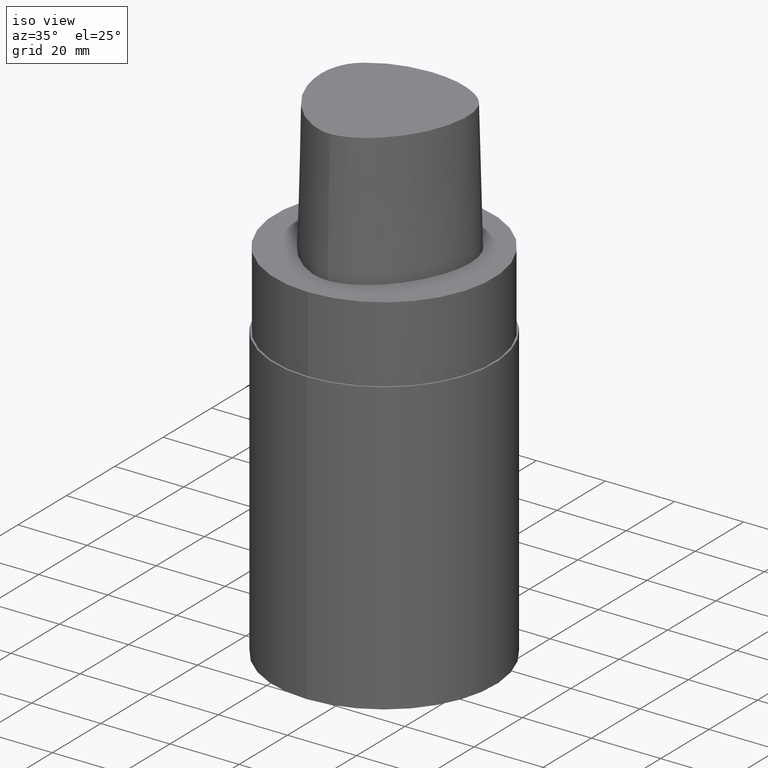
[diagram: clean part render]
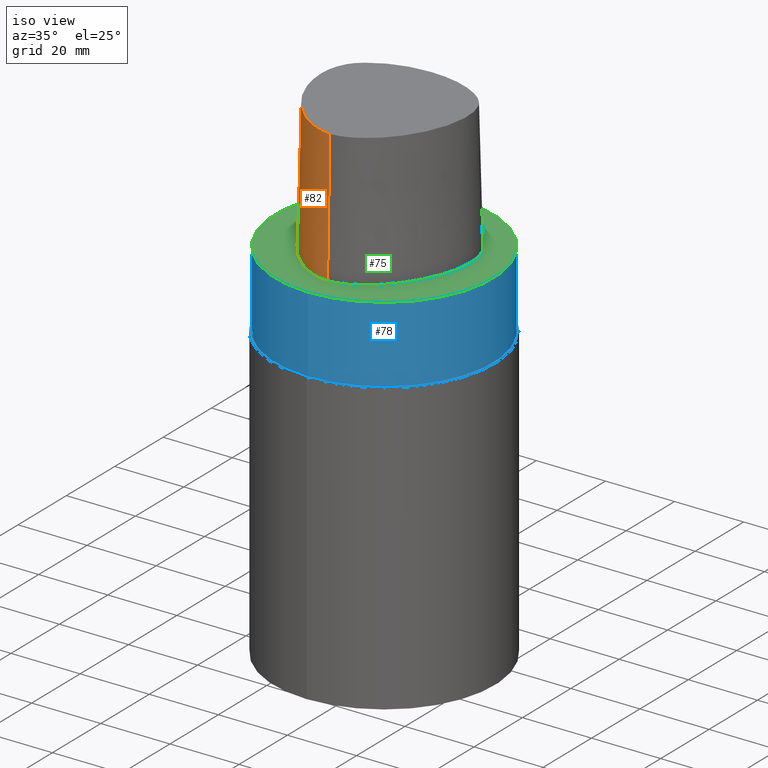
[diagram: same view with three faces highlighted in distinct colors, each labeled with its STEP entity id]
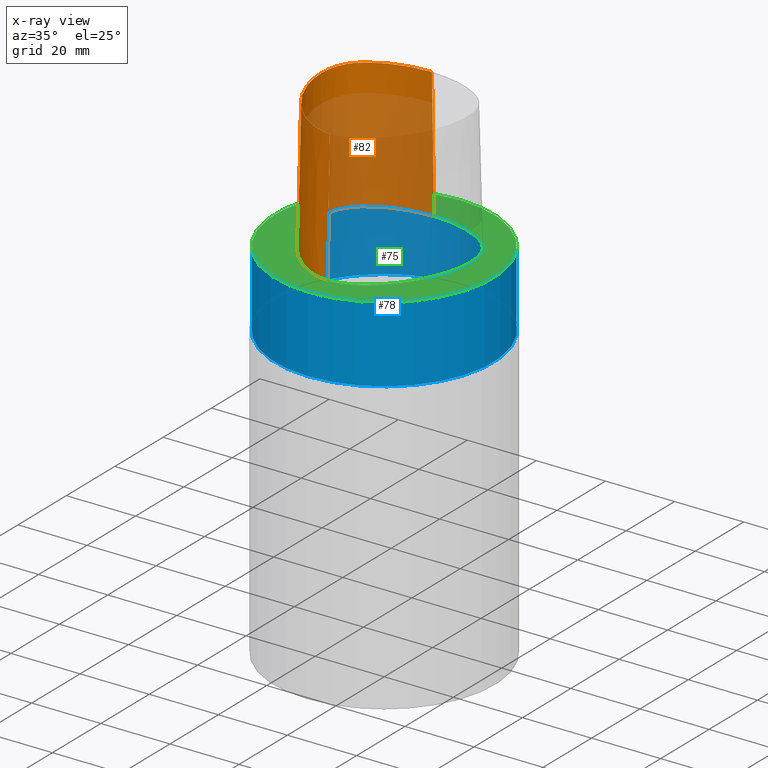
[diagram: x-ray of the same camera — body ghosted, the three highlighted faces saturated]
A machine part, iso view with three faces highlighted in distinct colors.
The next image is the same camera in x-ray (body ghosted, the three faces saturated) — at least one of them is partly hidden behind the body in this view.
Their STEP definitions:

[orange] entity #82 — the highlighted face is a freeform B-spline surface patch.
#82=ADVANCED_FACE('',(#105),#106,.T.);
#105=FACE_OUTER_BOUND('',#197,.T.);
#106=B_SPLINE_SURFACE_WITH_KNOTS('',3,3,((#198,#199,#200,#201),(#202,#203,#204,#205),(#206,#207,#208,#209),(#210,#211,#212,#213),(#214,#215,#216,#217),(#218,#219,#220,#221),(#222,#223,#224,#225),(#226,#227,#228,#229),(#230,#231,#232,#233),(#234,#235,#236,#237),(#238,#239,#240,#241),(#242,#243,#244,#245),(#246,#247,#248,#249),(#250,#251,#252,#253),(#254,#255,#256,#257),(#258,#259,#260,#261),(#262,#263,#264,#265),(#266,#267,#268,#269)),.UNSPECIFIED.,.F.,.F.,.F.,(4,1,1,1,1,1,1,1,1,2,1,1,1,1,4),(4,4),(-6.6151339308743,-6.20168806019465,-5.78824218951501,-5.37479631883537,-4.96135044815572,-4.13445870679644,-3.30756696543715,-2.89412109475751,-2.48067522407786,-2.06722935339822,-1.65378348271857,-1.24033761203893,-0.826891741359287,-0.413445870679644,0.0),(-3.8,0.0),.UNSPECIFIED.);
#197=EDGE_LOOP('',(#309,#310,#311,#312));
#198=CARTESIAN_POINT('',(0.038736923393866,-22.5191997536361,38.0));
#199=CARTESIAN_POINT('',(0.04035580478973,-22.8358410047159,25.3333333333066));
#200=CARTESIAN_POINT('',(0.041974686185626,-23.1524822558133,12.6666666666934));
#201=CARTESIAN_POINT('',(0.04359356758149,-23.4691235068931,0.0));
#202=CARTESIAN_POINT('',(-1.33786123484754,-22.5261650259856,38.0));
#203=CARTESIAN_POINT('',(-1.38240731367927,-22.8430399310626,25.3333333333066));
#204=CARTESIAN_POINT('',(-1.42695339249092,-23.1599147815484,12.6666666666934));
#205=CARTESIAN_POINT('',(-1.4714994713963,-23.4767895315797,0.0));
#206=CARTESIAN_POINT('',(-4.08909358431842,-21.9268839879558,38.0));
#207=CARTESIAN_POINT('',(-4.20580731135515,-22.2249725500078,25.3333333333066));
#208=CARTESIAN_POINT('',(-4.32252104640446,-22.5230611651922,12.6666666666934));
#209=CARTESIAN_POINT('',(-4.43923476371401,-22.821149804767,0.0));
#210=CARTESIAN_POINT('',(-7.8333083619947,-19.9973514861616,38.0));
#211=CARTESIAN_POINT('',(-8.00568301809614,-20.2649260859405,25.3333333333066));
#212=CARTESIAN_POINT('',(-8.1780576640789,-20.532500564315,12.6666666666934));
#213=CARTESIAN_POINT('',(-8.35043230079961,-20.8000751253325,0.0));
#214=CARTESIAN_POINT('',(-11.1035071147626,-17.450554957873,38.0));
#215=CARTESIAN_POINT('',(-11.3173048160562,-17.6855739222454,25.3333333333066));
#216=CARTESIAN_POINT('',(-11.5311025116181,-17.9205928617968,12.6666666666934));
#217=CARTESIAN_POINT('',(-11.744900222602,-18.1556117874078,0.0));
#218=CARTESIAN_POINT('',(-14.9379535189057,-13.461132049697,38.0));
#219=CARTESIAN_POINT('',(-15.191622410671,-13.6542981711372,25.3333333333066));
#220=CARTESIAN_POINT('',(-15.4452913389853,-13.8474645327131,12.6666666666934));
#221=CARTESIAN_POINT('',(-15.6989602501314,-14.0406306929147,0.0));
#222=CARTESIAN_POINT('',(-18.6681263017223,-7.59391757463204,38.0));
#223=CARTESIAN_POINT('',(-18.9571800800711,-7.73136168081928,25.3333333333066));
#224=CARTESIAN_POINT('',(-19.2462337287194,-7.86880572399774,12.6666666666934));
#225=CARTESIAN_POINT('',(-19.5352875070682,-8.00624990770787,0.0));
#226=CARTESIAN_POINT('',(-20.7857899858339,-0.952862819790525,38.0));
#227=CARTESIAN_POINT('',(-21.0973808305434,-1.02218087467418,25.3333333333066));
#228=CARTESIAN_POINT('',(-21.408971677436,-1.09149899580772,12.6666666666934));
#229=CARTESIAN_POINT('',(-21.7205626190491,-1.16081708945282,0.0));
#230=CARTESIAN_POINT('',(-21.2911760556836,4.5469215763113,38.0));
#231=CARTESIAN_POINT('',(-21.610337904926,4.54783292082248,25.3333333333066));
#232=CARTESIAN_POINT('',(-21.9294998290918,4.54874426225691,12.6666666666934));
#233=CARTESIAN_POINT('',(-22.2486616783342,4.54965558738736,0.0));
#234=CARTESIAN_POINT('',(-20.7345309521958,8.74909381391006,38.0));
#235=CARTESIAN_POINT('',(-21.0445680426217,8.83349432450556,25.3333333333066));
#236=CARTESIAN_POINT('',(-21.3546050933631,8.91789488065068,12.6666666666934));
#237=CARTESIAN_POINT('',(-21.6646421256468,9.00229539124618,0.0));
#238=CARTESIAN_POINT('',(-19.5531512296439,11.3174844040833,38.0));
#239=CARTESIAN_POINT('',(-19.8336219699984,11.4710077674213,25.3333333333066));
#240=CARTESIAN_POINT('',(-20.1140927680763,11.6245311337623,12.6666666666934));
#241=CARTESIAN_POINT('',(-20.3945635471922,11.7780544971003,0.0));
#242=CARTESIAN_POINT('',(-17.9100913688793,13.524027510437,38.0));
#243=CARTESIAN_POINT('',(-18.1375785458768,13.7487051053655,25.3333333333066));
#244=CARTESIAN_POINT('',(-18.365065665211,13.9733826973296,12.6666666666934));
#245=CARTESIAN_POINT('',(-18.5925528034471,14.1980602922581,0.0));
#246=CARTESIAN_POINT('',(-15.7996349656398,15.3762170634413,38.0));
#247=CARTESIAN_POINT('',(-15.9739761051783,15.6434029846179,25.3333333333066));
#248=CARTESIAN_POINT('',(-16.1483172726872,15.9105889315134,12.6666666666934));
#249=CARTESIAN_POINT('',(-16.3226584122258,16.1777748720707,0.0));
#250=CARTESIAN_POINT('',(-12.1175640002064,17.3825162484012,38.0));
#251=CARTESIAN_POINT('',(-12.2475895903055,17.6724842099619,25.3333333333066));
#252=CARTESIAN_POINT('',(-12.3776152070492,17.9624521925696,12.6666666666934));
#253=CARTESIAN_POINT('',(-12.5076407874579,18.2524201541303,0.0));
#254=CARTESIAN_POINT('',(-8.21761151654222,18.7588585989994,38.0));
#255=CARTESIAN_POINT('',(-8.30099497910627,19.0656105427881,25.3333333333066));
#256=CARTESIAN_POINT('',(-8.38437843913309,19.3723624535439,12.6666666666934));
#257=CARTESIAN_POINT('',(-8.46776192107786,19.679114377952,0.0));
#258=CARTESIAN_POINT('',(-4.13466093881225,19.5396850837055,38.0));
#259=CARTESIAN_POINT('',(-4.16658562115465,19.8557172636973,25.3333333333066));
#260=CARTESIAN_POINT('',(-4.19851029939059,20.1717494367229,12.6666666666934));
#261=CARTESIAN_POINT('',(-4.23043497193604,20.487781597334,0.0));
#262=CARTESIAN_POINT('',(-1.37917220403684,19.6638560588908,38.0));
#263=CARTESIAN_POINT('',(-1.39382511685176,19.98016223565,25.3333333333066));
#264=CARTESIAN_POINT('',(-1.40847802945569,20.296468399885,12.6666666666934));
#265=CARTESIAN_POINT('',(-1.42313094248379,20.6127745766442,0.0));
#266=CARTESIAN_POINT('',(-0.001218547003662,19.7276821925089,38.0));
#267=CARTESIAN_POINT('',(-0.015869696232855,20.043988446791,25.3333333333066));
#268=CARTESIAN_POINT('',(-0.030520845462092,20.3602947010464,12.6666666666934));
#269=CARTESIAN_POINT('',(-0.045171994691285,20.6766009553285,0.0));
#309=ORIENTED_EDGE('',*,*,#326,.T.);
#310=ORIENTED_EDGE('',*,*,#334,.F.);
#311=ORIENTED_EDGE('',*,*,#335,.F.);
#312=ORIENTED_EDGE('',*,*,#336,.T.);
#326=EDGE_CURVE('',#342,#339,#343,.T.);
#334=EDGE_CURVE('',#355,#339,#357,.T.);
#335=EDGE_CURVE('',#353,#355,#358,.T.);
#336=EDGE_CURVE('',#353,#342,#359,.T.);
#339=VERTEX_POINT('',#362);
#342=VERTEX_POINT('',#396);
#343=B_SPLINE_CURVE_WITH_KNOTS('',3,(#397,#398,#399,#400,#401,#402,#403,#404,#405,#406,#407,#408,#409,#410,#411,#412,#413,#414,#415,#416,#417,#418,#419,#420,#421,#422,#423,#424,#425,#426),.UNSPECIFIED.,.F.,.F.,(4,2,2,2,2,2,2,2,2,2,2,2,2,2,4),(0.0,0.576808184119594,1.15361636823919,1.43293031700624,1.7122442657733,1.99155821454036,2.27087216330741,2.85949822796588,3.15381126029511,3.44812429262434,4.36563722999232,5.28315016736029,5.8130055067864,6.21406971883035,6.6151339308743),.UNSPECIFIED.);
#353=VERTEX_POINT('',#436);
#355=VERTEX_POINT('',#439);
#357=LINE('',#456,#457);
#358=B_SPLINE_CURVE_WITH_KNOTS('',3,(#458,#459,#460,#461,#462,#463,#464,#465,#466,#467,#468,#469,#470,#471,#472,#473),.UNSPECIFIED.,.F.,.F.,(4,1,1,1,1,1,1,1,1,1,1,1,1,4),(0.0,0.447924670568964,0.9388024242536,1.50591409090711,2.07314340012323,2.72424957442464,3.2253501842849,3.80982102049476,4.34867996267067,4.85900173381144,5.37972031856977,6.03459825488646,6.61113557741484,6.61513393087395),.UNSPECIFIED.);
#359=LINE('',#474,#475);
#362=CARTESIAN_POINT('',(0.04359356758149,-23.4691235068931,0.0));
#396=CARTESIAN_POINT('',(-0.045171994691285,20.6766009553285,0.0));
#397=CARTESIAN_POINT('',(-0.045171994691285,20.6766009553285,0.0));
#398=CARTESIAN_POINT('',(-1.96758797023018,20.5875555983123,0.0));
#399=CARTESIAN_POINT('',(-3.95342611673668,20.4850284912479,-1.421085E-014));
#400=CARTESIAN_POINT('',(-7.86342529995983,19.7967909190733,7.105427E-015));
#401=CARTESIAN_POINT('',(-9.79439573378639,19.2503426360022,-1.421085E-014));
#402=CARTESIAN_POINT('',(-12.5351742003408,18.1332577991903,0.0));
#403=CARTESIAN_POINT('',(-13.4106560097683,17.7191970550452,0.0));
#404=CARTESIAN_POINT('',(-15.1227536857037,16.7802221286297,7.105427E-015));
#405=CARTESIAN_POINT('',(-15.9615364355591,16.2592643918937,0.0));
#406=CARTESIAN_POINT('',(-17.5597683566648,15.0665385774434,0.0));
#407=CARTESIAN_POINT('',(-18.3143568572283,14.3955246024635,-7.105427E-015));
#408=CARTESIAN_POINT('',(-19.638502795217,12.8665014798265,-7.105427E-015));
#409=CARTESIAN_POINT('',(-20.1979602542332,11.999774776593,0.0));
#410=CARTESIAN_POINT('',(-21.5622718142072,9.15853750369237,0.0));
#411=CARTESIAN_POINT('',(-21.9947483544612,7.02185767378744,0.0));
#412=CARTESIAN_POINT('',(-22.1134563193034,3.90325125553384,0.0));
#413=CARTESIAN_POINT('',(-22.0668279345839,2.87928778574124,0.0));
#414=CARTESIAN_POINT('',(-21.8551986681238,0.853042087412899,0.0));
#415=CARTESIAN_POINT('',(-21.6926789478513,-0.149498515836233,-1.421085E-014));
#416=CARTESIAN_POINT('',(-20.816421377794,-4.23736740865811,1.421085E-014));
#417=CARTESIAN_POINT('',(-19.659579746308,-7.20863943907163,-1.421085E-014));
#418=CARTESIAN_POINT('',(-16.574666895304,-12.7137973313948,0.0));
#419=CARTESIAN_POINT('',(-14.6473715787034,-15.2481179483411,-7.105427E-015));
#420=CARTESIAN_POINT('',(-11.050022952355,-18.7018400427945,7.105427E-015));
#421=CARTESIAN_POINT('',(-9.61826302632357,-19.8571497088389,0.0));
#422=CARTESIAN_POINT('',(-6.85491632421896,-21.5712784212,-1.421085E-014));
#423=CARTESIAN_POINT('',(-5.58035985461548,-22.2135461215161,0.0));
#424=CARTESIAN_POINT('',(-2.86743329636734,-23.1704091567902,0.0));
#425=CARTESIAN_POINT('',(-1.42611943322398,-23.4766376606116,0.0));
#426=CARTESIAN_POINT('',(0.04359356758149,-23.4691235068931,0.0));
#436=CARTESIAN_POINT('',(-0.001218547003662,19.7276821925089,38.0));
#439=CARTESIAN_POINT('',(0.038736923393866,-22.5191997536361,38.0));
#456=CARTESIAN_POINT('',(0.038736923393866,-22.5191997536361,38.0));
#457=VECTOR('',#495,38.0118715498723);
#458=CARTESIAN_POINT('',(-0.001218547003662,19.7276821925089,38.0));
#459=CARTESIAN_POINT('',(-1.49408492138443,19.6585333605309,38.0));
#460=CARTESIAN_POINT('',(-4.62297391420352,19.513604770166,38.0));
#461=CARTESIAN_POINT('',(-9.56160616752212,18.4291575730197,38.0));
#462=CARTESIAN_POINT('',(-14.5427684976927,16.2697452580488,38.0));
#463=CARTESIAN_POINT('',(-19.4315563551602,12.5302108980807,38.0));
#464=CARTESIAN_POINT('',(-21.306358833612,6.76352894547076,38.0));
#465=CARTESIAN_POINT('',(-21.0724946936277,0.957075236984038,38.0));
#466=CARTESIAN_POINT('',(-19.7876470880144,-4.34628503581652,38.0));
#467=CARTESIAN_POINT('',(-17.5396999600095,-9.33314444653089,38.0));
#468=CARTESIAN_POINT('',(-14.645447733857,-13.7185760345629,38.0));
#469=CARTESIAN_POINT('',(-10.7996726536643,-17.856257282137,38.0));
#470=CARTESIAN_POINT('',(-6.00479510196376,-21.2687382067675,38.0));
#471=CARTESIAN_POINT('',(-1.90747171908525,-22.5250621415864,38.0));
#472=CARTESIAN_POINT('',(0.025424107066464,-22.5192678176378,38.0));
#473=CARTESIAN_POINT('',(0.038736923394311,-22.519199753636,38.0));
#474=CARTESIAN_POINT('',(-0.001218547003662,19.7276821925089,38.0));
#475=VECTOR('',#496,38.0118715498723);
#495=DIRECTION('',(0.000127766510556,-0.024990186342461,-0.999687688361864));
#496=DIRECTION('',(-0.001156308434589,0.02496374748543,-0.999687688361864));

[blue] entity #78 — the highlighted cylindrical surface (bore or boss wall) has radius 31.4925 mm, axis along (-0, -0, 1).
#78=ADVANCED_FACE('',(#95,#96),#97,.T.);
#95=FACE_BOUND('',#120,.T.);
#96=FACE_BOUND('',#121,.T.);
#97=CYLINDRICAL_SURFACE('',#122,31.4925);
#120=EDGE_LOOP('',(#291));
#121=EDGE_LOOP('',(#292));
#122=AXIS2_PLACEMENT_3D('',#293,#294,#295);
#291=ORIENTED_EDGE('',*,*,#324,.T.);
#292=ORIENTED_EDGE('',*,*,#331,.F.);
#293=CARTESIAN_POINT('',(6.735557E-016,1.347111E-015,-11.0));
#294=DIRECTION('',(-0.0,-0.0,1.0));
#295=DIRECTION('',(0.0,1.0,0.0));
#324=EDGE_CURVE('',#337,#337,#338,.T.);
#331=EDGE_CURVE('',#351,#351,#352,.T.);
#337=VERTEX_POINT('',#360);
#338=CIRCLE('',#361,31.4925);
#351=VERTEX_POINT('',#434);
#352=CIRCLE('',#435,31.4925);
#360=CARTESIAN_POINT('',(-3.183036E-015,-31.4925,0.0));
#361=AXIS2_PLACEMENT_3D('',#476,#477,#478);
#434=CARTESIAN_POINT('',(-3.183036E-015,-31.4925,-22.0));
#435=AXIS2_PLACEMENT_3D('',#491,#492,#493);
#476=CARTESIAN_POINT('',(0.0,0.0,0.0));
#477=DIRECTION('',(0.0,0.0,-1.0));
#478=DIRECTION('',(0.0,1.0,0.0));
#491=CARTESIAN_POINT('',(1.347111E-015,2.694223E-015,-22.0));
#492=DIRECTION('',(0.0,0.0,-1.0));
#493=DIRECTION('',(0.0,1.0,0.0));

[green] entity #75 — the highlighted planar face has unit normal (0, 0, 1).
#75=ADVANCED_FACE('',(#86,#87),#88,.T.);
#86=FACE_OUTER_BOUND('',#111,.T.);
#87=FACE_BOUND('',#112,.T.);
#88=PLANE('',#113);
#111=EDGE_LOOP('',(#274));
#112=EDGE_LOOP('',(#275,#276,#277));
#113=AXIS2_PLACEMENT_3D('',#278,#279,#280);
#274=ORIENTED_EDGE('',*,*,#324,.F.);
#275=ORIENTED_EDGE('',*,*,#325,.F.);
#276=ORIENTED_EDGE('',*,*,#326,.F.);
#277=ORIENTED_EDGE('',*,*,#327,.F.);
#278=CARTESIAN_POINT('',(-1.940875E-031,15.74625,1.928359E-015));
#279=DIRECTION('',(0.0,0.0,1.0));
#280=DIRECTION('',(1.0,-0.0,0.0));
#324=EDGE_CURVE('',#337,#337,#338,.T.);
#325=EDGE_CURVE('',#339,#340,#341,.T.);
#326=EDGE_CURVE('',#342,#339,#343,.T.);
#327=EDGE_CURVE('',#340,#342,#344,.T.);
#337=VERTEX_POINT('',#360);
#338=CIRCLE('',#361,31.4925);
#339=VERTEX_POINT('',#362);
#340=VERTEX_POINT('',#363);
#341=B_SPLINE_CURVE_WITH_KNOTS('',3,(#364,#365,#366,#367,#368,#369,#370,#371,#372,#373,#374,#375,#376,#377,#378,#379,#380,#381,#382,#383,#384,#385,#386,#387,#388,#389,#390,#391,#392,#393,#394,#395),.UNSPECIFIED.,.F.,.F.,(4,2,2,2,2,2,2,2,2,2,2,2,2,2,2,4),(6.6151339308743,6.90353802293409,7.19194211499389,7.48034620705369,7.76875029911348,8.3273781966476,8.88600609418171,10.0632582234986,10.5220146921826,10.9807711608666,11.2101493952086,11.4395276295506,11.8982840982346,12.4281394376607,12.8292036497046,13.2302678617486),.UNSPECIFIED.);
#342=VERTEX_POINT('',#396);
#343=B_SPLINE_CURVE_WITH_KNOTS('',3,(#397,#398,#399,#400,#401,#402,#403,#404,#405,#406,#407,#408,#409,#410,#411,#412,#413,#414,#415,#416,#417,#418,#419,#420,#421,#422,#423,#424,#425,#426),.UNSPECIFIED.,.F.,.F.,(4,2,2,2,2,2,2,2,2,2,2,2,2,2,4),(0.0,0.576808184119594,1.15361636823919,1.43293031700624,1.7122442657733,1.99155821454036,2.27087216330741,2.85949822796588,3.15381126029511,3.44812429262434,4.36563722999232,5.28315016736029,5.8130055067864,6.21406971883035,6.6151339308743),.UNSPECIFIED.);
#344=CIRCLE('',#427,0.949936168379101);
#360=CARTESIAN_POINT('',(-3.183036E-015,-31.4925,0.0));
#361=AXIS2_PLACEMENT_3D('',#476,#477,#478);
#362=CARTESIAN_POINT('',(0.04359356758149,-23.4691235068931,0.0));
#363=CARTESIAN_POINT('',(0.044682985379347,20.6765087343109,0.0));
#364=CARTESIAN_POINT('',(0.04359356758149,-23.4691235068931,0.0));
#365=CARTESIAN_POINT('',(1.1004598519742,-23.4637201011149,7.105427E-015));
#366=CARTESIAN_POINT('',(2.14400887535539,-23.2973076591387,0.0));
#367=CARTESIAN_POINT('',(4.1424681795584,-22.7592077909815,0.0));
#368=CARTESIAN_POINT('',(5.09815205870591,-22.390397570418,-7.105427E-015));
#369=CARTESIAN_POINT('',(6.9351099930747,-21.5078613163183,-7.105427E-015));
#370=CARTESIAN_POINT('',(7.80351845767777,-20.9996631554928,-7.105427E-015));
#371=CARTESIAN_POINT('',(9.46943987011575,-19.8886274331692,-7.105427E-015));
#372=CARTESIAN_POINT('',(10.2666299015956,-19.2853057570752,-7.105427E-015));
#373=CARTESIAN_POINT('',(12.5026318141948,-17.3963733278614,2.131628E-014));
#374=CARTESIAN_POINT('',(13.8422909676271,-16.0046937991299,0.0));
#375=CARTESIAN_POINT('',(16.2509822407142,-13.0101546997628,1.421085E-014));
#376=CARTESIAN_POINT('',(17.3206577927156,-11.4078127381174,-7.105427E-015));
#377=CARTESIAN_POINT('',(20.1948648257688,-6.17855164445771,-7.105427E-015));
#378=CARTESIAN_POINT('',(21.5264998810762,-2.27044916431131,-7.105427E-015));
#379=CARTESIAN_POINT('',(22.1083077940609,3.36511341978747,-7.105427E-015));
#380=CARTESIAN_POINT('',(22.1437891560423,4.95691742010578,-7.105427E-015));
#381=CARTESIAN_POINT('',(21.7438554055,8.21486313336421,-7.105427E-015));
#382=CARTESIAN_POINT('',(21.2813238062713,9.87761881981491,0.0));
#383=CARTESIAN_POINT('',(20.1794569882097,12.0317423962685,0.0));
#384=CARTESIAN_POINT('',(19.7024138468366,12.7593191234763,-7.105427E-015));
#385=CARTESIAN_POINT('',(18.6262164065722,14.0443851003557,-7.105427E-015));
#386=CARTESIAN_POINT('',(18.0388107856225,14.6116679410871,0.0));
#387=CARTESIAN_POINT('',(16.1284788612342,16.197117807416,7.105427E-015));
#388=CARTESIAN_POINT('',(14.7618818860482,17.03003182658,0.0));
#389=CARTESIAN_POINT('',(11.6856166176821,18.5458506425855,0.0));
#390=CARTESIAN_POINT('',(9.96274972961394,19.1800623227596,0.0));
#391=CARTESIAN_POINT('',(6.84723700488339,20.0025241142556,0.0));
#392=CARTESIAN_POINT('',(5.4719505740624,20.2496312304465,0.0));
#393=CARTESIAN_POINT('',(2.7387517037224,20.5467807312008,0.0));
#394=CARTESIAN_POINT('',(1.38248716057628,20.6117898211938,0.0));
#395=CARTESIAN_POINT('',(0.044682985379347,20.6765087343109,0.0));
#396=CARTESIAN_POINT('',(-0.045171994691285,20.6766009553285,0.0));
#397=CARTESIAN_POINT('',(-0.045171994691285,20.6766009553285,0.0));
#398=CARTESIAN_POINT('',(-1.96758797023018,20.5875555983123,0.0));
#399=CARTESIAN_POINT('',(-3.95342611673668,20.4850284912479,-1.421085E-014));
#400=CARTESIAN_POINT('',(-7.86342529995983,19.7967909190733,7.105427E-015));
#401=CARTESIAN_POINT('',(-9.79439573378639,19.2503426360022,-1.421085E-014));
#402=CARTESIAN_POINT('',(-12.5351742003408,18.1332577991903,0.0));
#403=CARTESIAN_POINT('',(-13.4106560097683,17.7191970550452,0.0));
#404=CARTESIAN_POINT('',(-15.1227536857037,16.7802221286297,7.105427E-015));
#405=CARTESIAN_POINT('',(-15.9615364355591,16.2592643918937,0.0));
#406=CARTESIAN_POINT('',(-17.5597683566648,15.0665385774434,0.0));
#407=CARTESIAN_POINT('',(-18.3143568572283,14.3955246024635,-7.105427E-015));
#408=CARTESIAN_POINT('',(-19.638502795217,12.8665014798265,-7.105427E-015));
#409=CARTESIAN_POINT('',(-20.1979602542332,11.999774776593,0.0));
#410=CARTESIAN_POINT('',(-21.5622718142072,9.15853750369237,0.0));
#411=CARTESIAN_POINT('',(-21.9947483544612,7.02185767378744,0.0));
#412=CARTESIAN_POINT('',(-22.1134563193034,3.90325125553384,0.0));
#413=CARTESIAN_POINT('',(-22.0668279345839,2.87928778574124,0.0));
#414=CARTESIAN_POINT('',(-21.8551986681238,0.853042087412899,0.0));
#415=CARTESIAN_POINT('',(-21.6926789478513,-0.149498515836233,-1.421085E-014));
#416=CARTESIAN_POINT('',(-20.816421377794,-4.23736740865811,1.421085E-014));
#417=CARTESIAN_POINT('',(-19.659579746308,-7.20863943907163,-1.421085E-014));
#418=CARTESIAN_POINT('',(-16.574666895304,-12.7137973313948,0.0));
#419=CARTESIAN_POINT('',(-14.6473715787034,-15.2481179483411,-7.105427E-015));
#420=CARTESIAN_POINT('',(-11.050022952355,-18.7018400427945,7.105427E-015));
#421=CARTESIAN_POINT('',(-9.61826302632357,-19.8571497088389,0.0));
#422=CARTESIAN_POINT('',(-6.85491632421896,-21.5712784212,-1.421085E-014));
#423=CARTESIAN_POINT('',(-5.58035985461548,-22.2135461215161,0.0));
#424=CARTESIAN_POINT('',(-2.86743329636734,-23.1704091567902,0.0));
#425=CARTESIAN_POINT('',(-1.42611943322398,-23.4766376606116,0.0));
#426=CARTESIAN_POINT('',(0.04359356758149,-23.4691235068931,0.0));
#427=AXIS2_PLACEMENT_3D('',#479,#480,#481);
#476=CARTESIAN_POINT('',(0.0,0.0,0.0));
#477=DIRECTION('',(0.0,0.0,-1.0));
#478=DIRECTION('',(0.0,1.0,0.0));
#479=CARTESIAN_POINT('',(-0.001218547003662,19.7276821925089,0.0));
#480=DIRECTION('',(0.0,0.0,1.0));
#481=DIRECTION('',(-0.046269895968506,0.998928974816059,0.0));